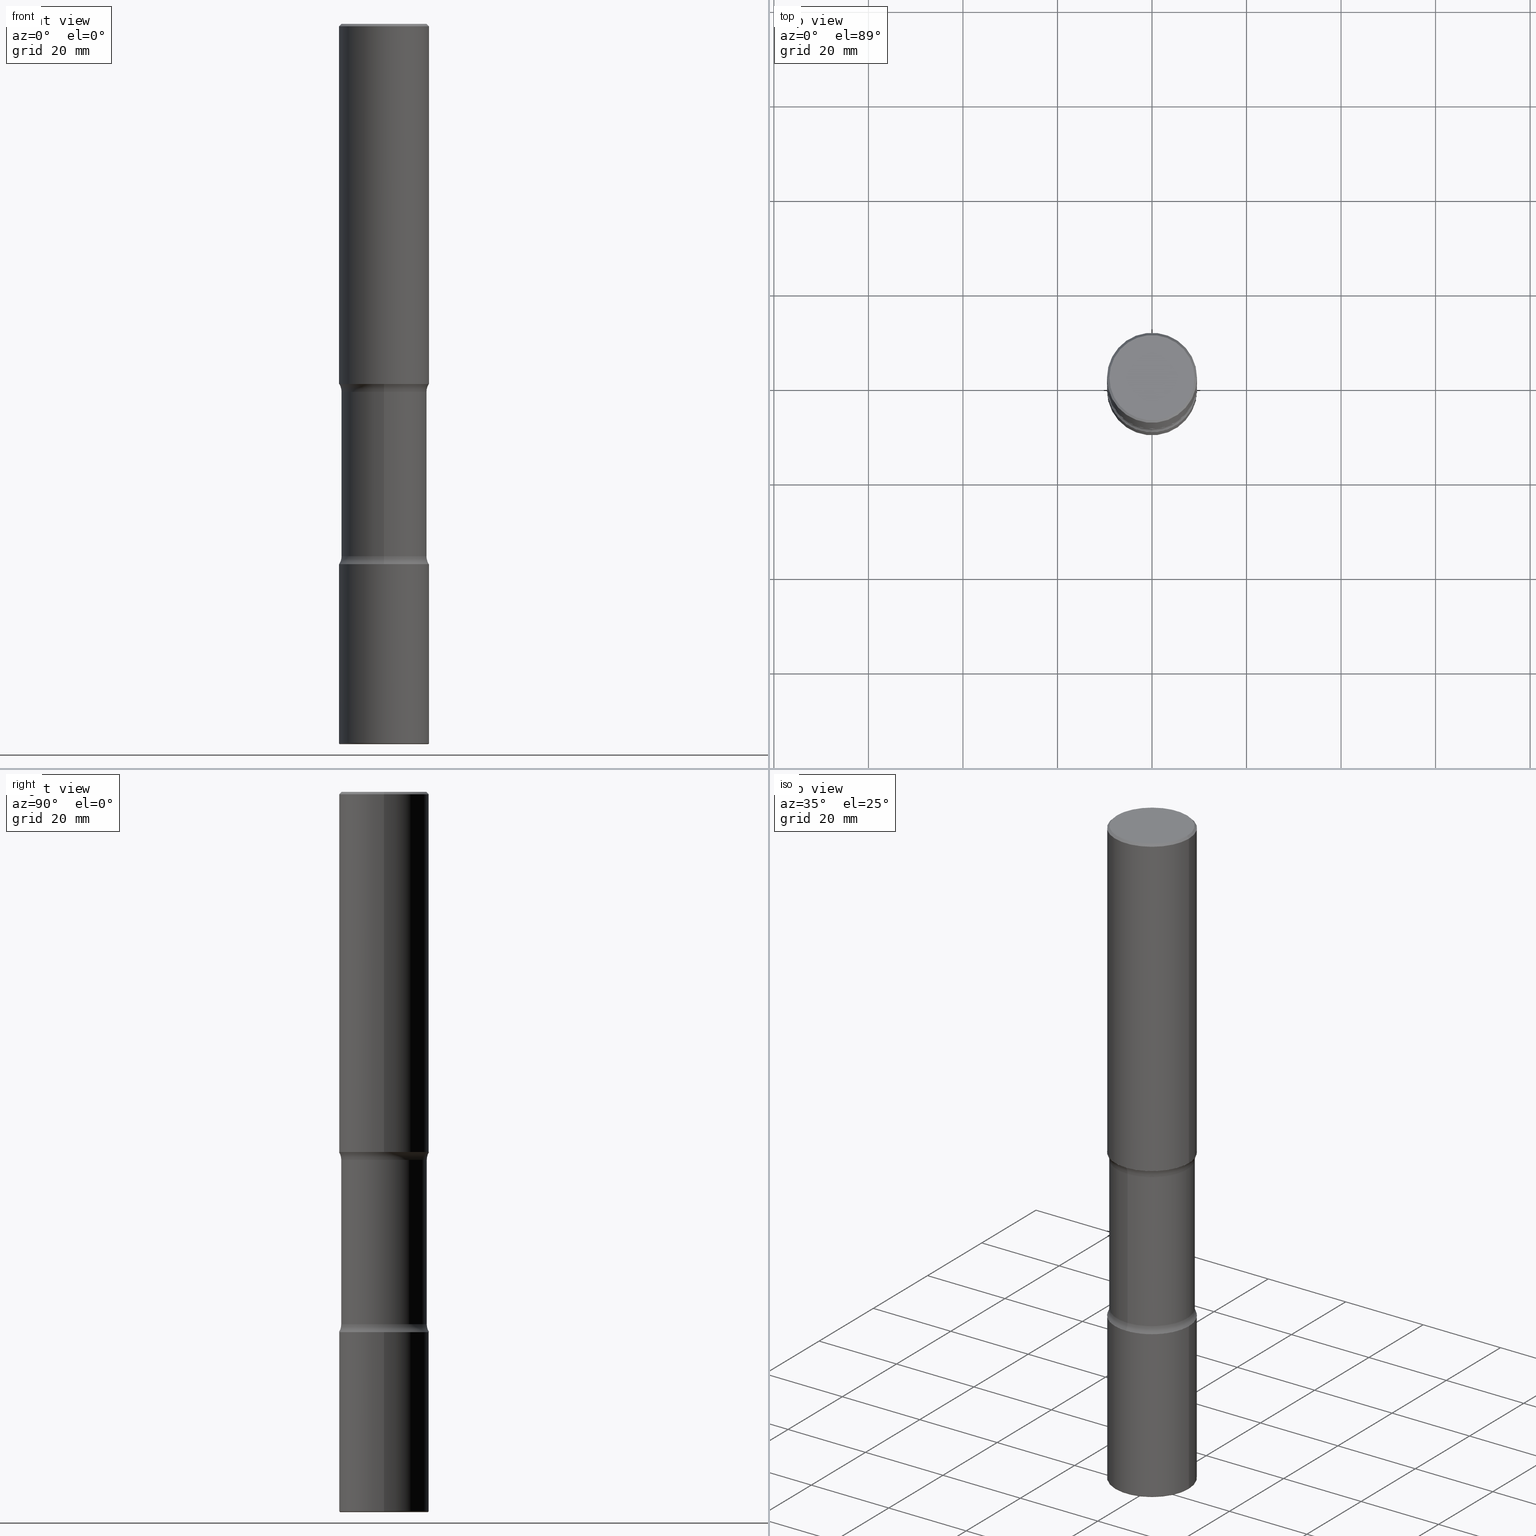
[diagram: canonical four-view strip — front | top / right | iso, engineering-drawing reading convention]
A machine part, canonical four-view strip (front | top / right | iso — engineering-drawing reading convention). The complete STEP part file that produces these views, byte-faithful:
ISO-10303-21;
HEADER;
FILE_DESCRIPTION (( 'STEP AP203' ),
    '1' );
FILE_NAME ('37929.STEP',
    '2024-03-02T01:29:25',
    ( '' ),
    ( '' ),
    'SwSTEP 2.0',
    'SolidWorks 2023',
    '' );
FILE_SCHEMA (( 'CONFIG_CONTROL_DESIGN' ));
ENDSEC;

DATA;
#1 = ADVANCED_FACE ( 'NONE', ( #199 ), #489, .T. ) ;
#2 = CIRCLE ( 'NONE', #344, 0.3750000000000001110 ) ;
#3 = ORIENTED_EDGE ( 'NONE', *, *, #211, .T. ) ;
#4 = PERSON_AND_ORGANIZATION ( #49, #335 ) ;
#5 = CARTESIAN_POINT ( 'NONE',  ( 1.467281283711081958E-28, -2.094888803305887271E-14, -6.000000000000000888 ) ) ;
#6 = EDGE_LOOP ( 'NONE', ( #395, #358, #317, #412 ) ) ;
#7 = EDGE_CURVE ( 'NONE', #544, #146, #245, .T. ) ;
#8 = ORIENTED_EDGE ( 'NONE', *, *, #478, .T. ) ;
#9 = VECTOR ( 'NONE', #209, 39.37007874015748143 ) ;
#10 = AXIS2_PLACEMENT_3D ( 'NONE', #263, #349, #133 ) ;
#11 = ORIENTED_EDGE ( 'NONE', *, *, #306, .T. ) ;
#12 = PERSON_AND_ORGANIZATION ( #49, #335 ) ;
#13 = ADVANCED_FACE ( 'NONE', ( #490 ), #29, .T. ) ;
#14 = DIRECTION ( 'NONE',  ( 1.000000000000000000, -6.982962677686265922E-15, 4.876176775795935793E-29 ) ) ;
#15 = VERTEX_POINT ( 'NONE', #460 ) ;
#16 = DIRECTION ( 'NONE',  ( 1.000000000000000000, -6.982962677686265922E-15, 0.000000000000000000 ) ) ;
#17 = ORIENTED_EDGE ( 'NONE', *, *, #379, .F. ) ;
#18 = AXIS2_PLACEMENT_3D ( 'NONE', #169, #189, #144 ) ;
#19 = EDGE_LOOP ( 'NONE', ( #285, #402, #549, #164 ) ) ;
#20 = VECTOR ( 'NONE', #213, 39.37007874015748143 ) ;
#21 = CARTESIAN_POINT ( 'NONE',  ( 4.890937612370289799E-31, -6.982962677686315028E-17, -0.02000000000000006981 ) ) ;
#22 = EDGE_LOOP ( 'NONE', ( #275, #374, #479, #73 ) ) ;
#23 = EDGE_CURVE ( 'NONE', #265, #100, #271, .T. ) ;
#24 = FACE_OUTER_BOUND ( 'NONE', #180, .T. ) ;
#25 = CARTESIAN_POINT ( 'NONE',  ( 2.487680453925840195E-15, 0.3562499999999844680, -4.434152164044670386 ) ) ;
#26 = ORIENTED_EDGE ( 'NONE', *, *, #328, .F. ) ;
#27 = DIRECTION ( 'NONE',  ( 1.000000000000000000, -6.982962677686265922E-15, 0.000000000000000000 ) ) ;
#28 = VERTEX_POINT ( 'NONE', #204 ) ;
#29 = CONICAL_SURFACE ( 'NONE', #443, 0.3750000000000001110, 0.7853981633974479459 ) ;
#30 = DIRECTION ( 'NONE',  ( 2.508247471065963170E-29, -3.401578717594097873E-15, -1.000000000000000000 ) ) ;
#31 = CC_DESIGN_APPROVAL ( #136, ( #394 ) ) ;
#32 = CARTESIAN_POINT ( 'NONE',  ( 4.890937612370289799E-31, -6.982962677686315028E-17, -0.02000000000000006981 ) ) ;
#33 = PERSON_AND_ORGANIZATION ( #49, #335 ) ;
#34 = CARTESIAN_POINT ( 'NONE',  ( -2.444052411705960129E-15, -0.3562500000000208278, -5.999999999999998224 ) ) ;
#35 = DIRECTION ( 'NONE',  ( -1.000000000000000000, 6.982962677686265922E-15, -4.876176775795935793E-29 ) ) ;
#36 = DIRECTION ( 'NONE',  ( -1.000000000000000000, 7.105427357601099677E-15, 0.000000000000000000 ) ) ;
#37 = LINE ( 'NONE', #82, #492 ) ;
#38 = DIRECTION ( 'NONE',  ( -2.445468806185136597E-29, 3.491481338843145583E-15, 1.000000000000000000 ) ) ;
#39 = LENGTH_MEASURE_WITH_UNIT ( LENGTH_MEASURE( 0.02539999999999999897 ), #78 );
#40 = ADVANCED_FACE ( 'NONE', ( #119 ), #231, .T. ) ;
#41 = PLANE ( 'NONE',  #436 ) ;
#42 = CLOSED_SHELL ( 'NONE', ( #120, #1, #172, #277, #225, #248 ) ) ;
#43 = VECTOR ( 'NONE', #342, 39.37007874015748143 ) ;
#44 = CALENDAR_DATE ( 2024, 1, 3 ) ;
#45 = ADVANCED_FACE ( 'NONE', ( #423 ), #253, .F. ) ;
#46 = ORIENTED_EDGE ( 'NONE', *, *, #504, .F. ) ;
#47 = ORIENTED_EDGE ( 'NONE', *, *, #293, .F. ) ;
#48 = APPROVAL_ROLE ( '' ) ;
#49 = PERSON ( 'UNSPECIFIED', 'UNSPECIFIED', 'UNSPECIFIED', ('UNSPECIFIED'), ('UNSPECIFIED'), ('UNSPECIFIED') ) ;
#50 = AXIS2_PLACEMENT_3D ( 'NONE', #71, #247, #380 ) ;
#51 = AXIS2_PLACEMENT_3D ( 'NONE', #76, #330, #465 ) ;
#52 = EDGE_CURVE ( 'NONE', #487, #97, #491, .T. ) ;
#53 = ORIENTED_EDGE ( 'NONE', *, *, #413, .F. ) ;
#54 = EDGE_LOOP ( 'NONE', ( #541, #8 ) ) ;
#55 = PERSON_AND_ORGANIZATION ( #49, #335 ) ;
#56 = EDGE_LOOP ( 'NONE', ( #445, #3, #503, #362 ) ) ;
#57 = EDGE_CURVE ( 'NONE', #481, #130, #280, .T. ) ;
#58 = AXIS2_PLACEMENT_3D ( 'NONE', #289, #554, #210 ) ;
#59 = AXIS2_PLACEMENT_3D ( 'NONE', #240, #431, #131 ) ;
#60 = ORIENTED_EDGE ( 'NONE', *, *, #264, .F. ) ;
#61 = EDGE_CURVE ( 'NONE', #292, #368, #2, .T. ) ;
#62 = ORIENTED_EDGE ( 'NONE', *, *, #23, .T. ) ;
#63 = DIRECTION ( 'NONE',  ( 6.982962677686265922E-15, 1.000000000000000000, -3.401578717594097873E-15 ) ) ;
#64 = ORIENTED_EDGE ( 'NONE', *, *, #469, .F. ) ;
#65 = CARTESIAN_POINT ( 'NONE',  ( -2.508369580435107128E-15, -0.3562500000000154987, -4.434152164044668609 ) ) ;
#66 = CARTESIAN_POINT ( 'NONE',  ( 2.487680453925806274E-15, 0.3562499999999891309, -3.065847835955330503 ) ) ;
#67 = AXIS2_PLACEMENT_3D ( 'NONE', #242, #333, #27 ) ;
#68 = ORIENTED_EDGE ( 'NONE', *, *, #534, .F. ) ;
#69 = EDGE_CURVE ( 'NONE', #528, #28, #163, .T. ) ;
#70 = DIRECTION ( 'NONE',  ( 1.000000000000000000, -6.982962677686124716E-15, 0.000000000000000000 ) ) ;
#71 = CARTESIAN_POINT ( 'NONE',  ( 1.467281283711081958E-28, -2.094888803305887271E-14, -6.000000000000000888 ) ) ;
#72 = CARTESIAN_POINT ( 'NONE',  ( -0.3550000000000000377, 2.513866563967055858E-15, 4.268512490082953109E-18 ) ) ;
#73 = ORIENTED_EDGE ( 'NONE', *, *, #440, .F. ) ;
#74 = EDGE_CURVE ( 'NONE', #100, #92, #288, .T. ) ;
#75 = CARTESIAN_POINT ( 'NONE',  ( 1.464835814904896579E-28, -2.091397321967043948E-14, -5.989999999999999325 ) ) ;
#76 = CARTESIAN_POINT ( 'NONE',  ( 1.100460962783311244E-28, -1.571166602479415374E-14, -4.499999999999999112 ) ) ;
#77 = AXIS2_PLACEMENT_3D ( 'NONE', #390, #30, #301 ) ;
#78 =( LENGTH_UNIT ( ) NAMED_UNIT ( * ) SI_UNIT ( $, .METRE. ) );
#79 = DIRECTION ( 'NONE',  ( 2.508247471065963170E-29, -3.401578717594097873E-15, -1.000000000000000000 ) ) ;
#80 = DIRECTION ( 'NONE',  ( 6.982962677686265133E-15, 1.000000000000000000, -3.067338098149347905E-15 ) ) ;
#81 = DIRECTION ( 'NONE',  ( 1.000000000000000000, -6.982962677686265922E-15, 0.000000000000000000 ) ) ;
#82 = CARTESIAN_POINT ( 'NONE',  ( 0.3750000000000001110, -2.642516375941188423E-15, -0.02000000000000006981 ) ) ;
#83 = DIRECTION ( 'NONE',  ( 6.982962677686265922E-15, 1.000000000000000000, -3.401578717594097873E-15 ) ) ;
#84 = CALENDAR_DATE ( 2024, 1, 3 ) ;
#85 = CARTESIAN_POINT ( 'NONE',  ( -0.3750000000000001110, 2.548781377355487113E-15, -0.02000000000000006981 ) ) ;
#86 = CC_DESIGN_PERSON_AND_ORGANIZATION_ASSIGNMENT ( #212, #464, ( #270 ) ) ;
#87 =( NAMED_UNIT ( * ) PLANE_ANGLE_UNIT ( ) SI_UNIT ( $, .RADIAN. ) );
#88 = CYLINDRICAL_SURFACE ( 'NONE', #10, 0.3750000000000002220 ) ;
#89 = AXIS2_PLACEMENT_3D ( 'NONE', #149, #536, #14 ) ;
#90 = APPROVAL_PERSON_ORGANIZATION ( #132, #205, #125 ) ;
#91 = DIRECTION ( 'NONE',  ( 2.508247471065963170E-29, -3.401578717594097873E-15, -1.000000000000000000 ) ) ;
#92 = VERTEX_POINT ( 'NONE', #543 ) ;
#93 = COORDINATED_UNIVERSAL_TIME_OFFSET ( 5, 0, .BEHIND. ) ;
#94 = CC_DESIGN_PERSON_AND_ORGANIZATION_ASSIGNMENT ( #276, #185, ( #135 ) ) ;
#95 = EDGE_LOOP ( 'NONE', ( #524, #219, #448, #105 ) ) ;
#96 = PRODUCT_DEFINITION_SHAPE ( 'NONE', 'NONE',  #337 ) ;
#97 = VERTEX_POINT ( 'NONE', #238 ) ;
#98 = DIRECTION ( 'NONE',  ( -2.445468806185136597E-29, 3.491481338843145583E-15, 1.000000000000000000 ) ) ;
#99 = ORIENTED_EDGE ( 'NONE', *, *, #109, .T. ) ;
#100 = VERTEX_POINT ( 'NONE', #161 ) ;
#101 = CARTESIAN_POINT ( 'NONE',  ( 2.618611004132426142E-15, 0.3749999999999898415, -3.000000000000000444 ) ) ;
#102 = CARTESIAN_POINT ( 'NONE',  ( 1.084358079904955852E-28, -1.548175953435291656E-14, -4.434152164044670386 ) ) ;
#103 = AXIS2_PLACEMENT_3D ( 'NONE', #392, #532, #323 ) ;
#104 = AXIS2_PLACEMENT_3D ( 'NONE', #548, #162, #36 ) ;
#105 = ORIENTED_EDGE ( 'NONE', *, *, #547, .T. ) ;
#106 = ADVANCED_FACE ( 'NONE', ( #407 ), #315, .F. ) ;
#107 = CARTESIAN_POINT ( 'NONE',  ( 0.3650000000000003242, -2.346275459702592935E-14, -5.989999999999999325 ) ) ;
#108 = EDGE_LOOP ( 'NONE', ( #239, #193, #483, #17 ) ) ;
#109 = EDGE_CURVE ( 'NONE', #287, #15, #424, .T. ) ;
#110 = FACE_OUTER_BOUND ( 'NONE', #314, .T. ) ;
#111 = DIRECTION ( 'NONE',  ( -2.445468806185136597E-29, 3.491481338843145583E-15, 1.000000000000000000 ) ) ;
#112 = DIRECTION ( 'NONE',  ( 1.000000000000000000, -6.982962677686266711E-15, 4.876176775795935793E-29 ) ) ;
#113 = DIRECTION ( 'NONE',  ( -6.982962677686268288E-15, -1.000000000000000000, 0.000000000000000000 ) ) ;
#114 = AXIS2_PLACEMENT_3D ( 'NONE', #201, #429, #156 ) ;
#115 = ORIENTED_EDGE ( 'NONE', *, *, #232, .T. ) ;
#116 = CIRCLE ( 'NONE', #188, 0.3750000000000003886 ) ;
#117 = DIRECTION ( 'NONE',  ( -6.982962677686265133E-15, -1.000000000000000000, 0.000000000000000000 ) ) ;
#118 = CARTESIAN_POINT ( 'NONE',  ( -1.043851414335219820E-46, 1.490343170380447200E-32, 4.268512490100411279E-18 ) ) ;
#119 = FACE_OUTER_BOUND ( 'NONE', #108, .T. ) ;
#120 = ADVANCED_FACE ( 'NONE', ( #110 ), #295, .T. ) ;
#121 = DIRECTION ( 'NONE',  ( 2.438088387897960049E-29, -3.491481338843145188E-15, -1.000000000000000000 ) ) ;
#122 = CLOSED_SHELL ( 'NONE', ( #298, #40, #13, #274, #401, #406 ) ) ;
#123 = EDGE_LOOP ( 'NONE', ( #64, #62, #261, #226 ) ) ;
#124 = CIRCLE ( 'NONE', #405, 0.3750000000000003886 ) ;
#125 = APPROVAL_ROLE ( '' ) ;
#126 = CARTESIAN_POINT ( 'NONE',  ( -2.508369580435144205E-15, -0.3562500000000108358, -3.065847835955328282 ) ) ;
#127 = DIRECTION ( 'NONE',  ( -2.445468806185136597E-29, 3.491481338843145583E-15, 1.000000000000000000 ) ) ;
#128 = COORDINATED_UNIVERSAL_TIME_OFFSET ( 5, 0, .BEHIND. ) ;
#129 = CC_DESIGN_DATE_AND_TIME_ASSIGNMENT ( #381, #167, ( #337 ) ) ;
#130 = VERTEX_POINT ( 'NONE', #66 ) ;
#131 = DIRECTION ( 'NONE',  ( 6.982962677686265922E-15, 1.000000000000000000, -2.913971193241877611E-15 ) ) ;
#132 = PERSON_AND_ORGANIZATION ( #49, #335 ) ;
#133 = DIRECTION ( 'NONE',  ( 1.000000000000000000, -6.982962677686266711E-15, 4.876176775795935793E-29 ) ) ;
#134 = AXIS2_PLACEMENT_3D ( 'NONE', #297, #438, #442 ) ;
#135 = PRODUCT_DEFINITION_FORMATION_WITH_SPECIFIED_SOURCE ( 'ANY', '', #270, .NOT_KNOWN. ) ;
#136 = APPROVAL ( #222, 'UNSPECIFIED' ) ;
#137 = CARTESIAN_POINT ( 'NONE',  ( -0.3750000000000001110, 2.548781377355487113E-15, -0.02000000000000006981 ) ) ;
#138 = CYLINDRICAL_SURFACE ( 'NONE', #300, 0.3562500000000000111 ) ;
#139 = ORIENTED_EDGE ( 'NONE', *, *, #256, .T. ) ;
#140 = ORIENTED_EDGE ( 'NONE', *, *, #7, .T. ) ;
#141 = AXIS2_PLACEMENT_3D ( 'NONE', #160, #121, #35 ) ;
#142 =( GEOMETRIC_REPRESENTATION_CONTEXT ( 3 ) GLOBAL_UNCERTAINTY_ASSIGNED_CONTEXT ( ( #530 ) ) GLOBAL_UNIT_ASSIGNED_CONTEXT ( ( #559, #87, #173 ) ) REPRESENTATION_CONTEXT ( 'NONE', 'WORKASPACE' ) );
#143 = VERTEX_POINT ( 'NONE', #420 ) ;
#144 = DIRECTION ( 'NONE',  ( 6.982962677686266711E-15, 1.000000000000000000, -2.913971193241876822E-15 ) ) ;
#145 = EDGE_CURVE ( 'NONE', #92, #143, #192, .T. ) ;
#146 = VERTEX_POINT ( 'NONE', #488 ) ;
#147 = PLANE ( 'NONE',  #414 ) ;
#148 = CIRCLE ( 'NONE', #467, 0.3750000000000002776 ) ;
#149 = CARTESIAN_POINT ( 'NONE',  ( 0.000000000000000000, 0.000000000000000000, 0.000000000000000000 ) ) ;
#150 = CIRCLE ( 'NONE', #378, 0.3750000000000004996 ) ;
#151 = VERTEX_POINT ( 'NONE', #25 ) ;
#152 = DIRECTION ( 'NONE',  ( 6.982962677686265133E-15, 1.000000000000000000, -3.067338098149347905E-15 ) ) ;
#153 = DIRECTION ( 'NONE',  ( 2.438088387897960049E-29, -3.491481338843145188E-15, -1.000000000000000000 ) ) ;
#154 = CARTESIAN_POINT ( 'NONE',  ( -0.3750000000000003886, 2.664535259100378458E-15, -1.844600658845591560E-29 ) ) ;
#155 = CYLINDRICAL_SURFACE ( 'NONE', #223, 0.3750000000000002220 ) ;
#156 = DIRECTION ( 'NONE',  ( 1.000000000000000000, -6.982962677686265922E-15, 4.876176775795935793E-29 ) ) ;
#157 = DIRECTION ( 'NONE',  ( 2.508247471065963170E-29, -3.401578717594097873E-15, -1.000000000000000000 ) ) ;
#158 = DIRECTION ( 'NONE',  ( 2.445468806185136597E-29, -3.491481338843145583E-15, -1.000000000000000000 ) ) ;
#159 = DIRECTION ( 'NONE',  ( 6.860497997771531562E-15, 1.000000000000000000, 0.000000000000000000 ) ) ;
#160 = CARTESIAN_POINT ( 'NONE',  ( 1.100460962783311244E-28, -1.571166602479415374E-14, -4.499999999999999112 ) ) ;
#161 = CARTESIAN_POINT ( 'NONE',  ( 0.3650000000000003242, -2.349766941041436574E-14, -6.000000000000000888 ) ) ;
#162 = DIRECTION ( 'NONE',  ( 7.105427357601001859E-15, 1.000000000000000000, -3.491481338843145583E-15 ) ) ;
#163 = CIRCLE ( 'NONE', #221, 0.3750000000000003886 ) ;
#164 = ORIENTED_EDGE ( 'NONE', *, *, #74, .F. ) ;
#165 = DIRECTION ( 'NONE',  ( 6.982962677686265922E-15, 1.000000000000000000, -3.401578717594097873E-15 ) ) ;
#166 = ADVANCED_FACE ( 'NONE', ( #498 ), #147, .F. ) ;
#167 = DATE_TIME_ROLE ( 'creation_date' ) ;
#168 = FACE_OUTER_BOUND ( 'NONE', #54, .T. ) ;
#169 = CARTESIAN_POINT ( 'NONE',  ( 7.242238421234168109E-29, -1.060929794840300496E-14, -2.999999999999999112 ) ) ;
#170 = AXIS2_PLACEMENT_3D ( 'NONE', #456, #243, #113 ) ;
#171 = CIRCLE ( 'NONE', #104, 0.01000000000000057614 ) ;
#172 = ADVANCED_FACE ( 'NONE', ( #461 ), #194, .T. ) ;
#173 =( NAMED_UNIT ( * ) SI_UNIT ( $, .STERADIAN. ) SOLID_ANGLE_UNIT ( ) );
#174 = APPROVAL_DATE_TIME ( #254, #205 ) ;
#175 = DESIGN_CONTEXT ( 'detailed design', #480, 'design' ) ;
#176 = EDGE_CURVE ( 'NONE', #528, #292, #325, .T. ) ;
#177 = VECTOR ( 'NONE', #409, 39.37007874015748143 ) ;
#178 = CIRCLE ( 'NONE', #444, 0.3562500000000000111 ) ;
#179 = DIRECTION ( 'NONE',  ( 6.982962677686266711E-15, 1.000000000000000000, -2.913971193241876822E-15 ) ) ;
#180 = EDGE_LOOP ( 'NONE', ( #485, #115, #454, #60 ) ) ;
#181 = MANIFOLD_SOLID_BREP ( 'Body-Move/Copy2[2]', #122 ) ;
#182 = CARTESIAN_POINT ( 'NONE',  ( 2.478951750578624998E-15, 0.3550000000000000377, -1.237341619044266624E-15 ) ) ;
#183 = VERTEX_POINT ( 'NONE', #286 ) ;
#184 = ORIENTED_EDGE ( 'NONE', *, *, #365, .T. ) ;
#185 = PERSON_AND_ORGANIZATION_ROLE ( 'design_supplier' ) ;
#186 = CIRCLE ( 'NONE', #500, 0.3562500000000000111 ) ;
#187 = EDGE_CURVE ( 'NONE', #278, #151, #387, .T. ) ;
#188 = AXIS2_PLACEMENT_3D ( 'NONE', #340, #555, #81 ) ;
#189 = DIRECTION ( 'NONE',  ( 2.508247471065963170E-29, -3.401578717594097873E-15, -1.000000000000000000 ) ) ;
#190 = EDGE_LOOP ( 'NONE', ( #220, #184, #195, #224 ) ) ;
#191 = CALENDAR_DATE ( 2024, 1, 3 ) ;
#192 = LINE ( 'NONE', #282, #177 ) ;
#193 = ORIENTED_EDGE ( 'NONE', *, *, #484, .T. ) ;
#194 = PLANE ( 'NONE',  #322 ) ;
#195 = ORIENTED_EDGE ( 'NONE', *, *, #61, .F. ) ;
#196 = EDGE_CURVE ( 'NONE', #92, #544, #305, .T. ) ;
#197 = MANIFOLD_SOLID_BREP ( 'Body-Move/Copy2[4]', #260 ) ;
#198 = AXIS2_PLACEMENT_3D ( 'NONE', #296, #462, #249 ) ;
#199 = FACE_OUTER_BOUND ( 'NONE', #19, .T. ) ;
#200 = CARTESIAN_POINT ( 'NONE',  ( 2.618611004132461246E-15, 0.3749999999999845124, -4.500000000000000888 ) ) ;
#201 = CARTESIAN_POINT ( 'NONE',  ( 0.000000000000000000, 0.000000000000000000, 0.000000000000000000 ) ) ;
#202 = DIRECTION ( 'NONE',  ( 1.000000000000000000, -6.982962677686266711E-15, 4.876231632511987623E-29 ) ) ;
#203 = CARTESIAN_POINT ( 'NONE',  ( 7.336406418555407548E-29, -1.047444401652943320E-14, -2.999999999999999112 ) ) ;
#204 = CARTESIAN_POINT ( 'NONE',  ( -0.3750000000000003886, -2.607601562552767029E-15, -2.999999999999999112 ) ) ;
#205 = APPROVAL ( #437, 'UNSPECIFIED' ) ;
#206 = DIRECTION ( 'NONE',  ( 1.000000000000000000, -6.982962677686266711E-15, 4.883557194083113462E-29 ) ) ;
#207 = COORDINATED_UNIVERSAL_TIME_OFFSET ( 5, 0, .BEHIND. ) ;
#208 = FACE_OUTER_BOUND ( 'NONE', #6, .T. ) ;
#209 = DIRECTION ( 'NONE',  ( 2.508247471065963170E-29, -3.401578717594097873E-15, -1.000000000000000000 ) ) ;
#210 = DIRECTION ( 'NONE',  ( 6.860497997771532351E-15, 1.000000000000000000, 0.000000000000000000 ) ) ;
#211 = EDGE_CURVE ( 'NONE', #481, #97, #403, .T. ) ;
#212 = PERSON_AND_ORGANIZATION ( #49, #335 ) ;
#213 = DIRECTION ( 'NONE',  ( -2.445468806185136877E-29, 3.491481338843145188E-15, 1.000000000000000000 ) ) ;
#214 = AXIS2_PLACEMENT_3D ( 'NONE', #466, #369, #542 ) ;
#215 = CC_DESIGN_APPROVAL ( #228, ( #135 ) ) ;
#216 = APPLICATION_PROTOCOL_DEFINITION ( 'international standard', 'config_control_design', 1994, #480 ) ;
#217 = ADVANCED_FACE ( 'NONE', ( #343 ), #416, .T. ) ;
#218 = DIRECTION ( 'NONE',  ( -2.445468806185136597E-29, 3.491481338843145583E-15, 1.000000000000000000 ) ) ;
#219 = ORIENTED_EDGE ( 'NONE', *, *, #525, .F. ) ;
#220 = ORIENTED_EDGE ( 'NONE', *, *, #69, .T. ) ;
#221 = AXIS2_PLACEMENT_3D ( 'NONE', #290, #411, #284 ) ;
#222 = APPROVAL_STATUS ( 'not_yet_approved' ) ;
#223 = AXIS2_PLACEMENT_3D ( 'NONE', #383, #496, #112 ) ;
#224 = ORIENTED_EDGE ( 'NONE', *, *, #176, .F. ) ;
#225 = ADVANCED_FACE ( 'NONE', ( #24 ), #339, .T. ) ;
#226 = ORIENTED_EDGE ( 'NONE', *, *, #232, .F. ) ;
#227 = DATE_AND_TIME ( #486, #551 ) ;
#228 = APPROVAL ( #338, 'UNSPECIFIED' ) ;
#229 = ORIENTED_EDGE ( 'NONE', *, *, #57, .T. ) ;
#230 = SECURITY_CLASSIFICATION_LEVEL ( 'unclassified' ) ;
#231 = CONICAL_SURFACE ( 'NONE', #198, 0.3750000000000001110, 0.7853981633974479459 ) ;
#232 = EDGE_CURVE ( 'NONE', #544, #92, #148, .T. ) ;
#233 = LOCAL_TIME ( 20, 29, 25.00000000000000000, #302 ) ;
#234 = ORIENTED_EDGE ( 'NONE', *, *, #518, .F. ) ;
#235 = CC_DESIGN_PERSON_AND_ORGANIZATION_ASSIGNMENT ( #4, #352, ( #394 ) ) ;
#236 = DIRECTION ( 'NONE',  ( -2.445468806185136597E-29, 3.491481338843145583E-15, 1.000000000000000000 ) ) ;
#237 = VERTEX_POINT ( 'NONE', #65 ) ;
#238 = CARTESIAN_POINT ( 'NONE',  ( -2.572686749164255311E-15, -0.3750000000000111577, -2.999999999999998224 ) ) ;
#239 = ORIENTED_EDGE ( 'NONE', *, *, #256, .F. ) ;
#240 = CARTESIAN_POINT ( 'NONE',  ( 1.100460962783311244E-28, -1.571166602479415374E-14, -4.499999999999999112 ) ) ;
#241 = CIRCLE ( 'NONE', #537, 0.3550000000000000377 ) ;
#242 = CARTESIAN_POINT ( 'NONE',  ( 1.100460962783311244E-28, -1.571166602479415374E-14, -4.499999999999999112 ) ) ;
#243 = DIRECTION ( 'NONE',  ( -1.000000000000000000, 6.982962677686265922E-15, -4.883557194083112901E-29 ) ) ;
#244 = LOCAL_TIME ( 20, 29, 25.00000000000000000, #207 ) ;
#245 = LINE ( 'NONE', #154, #526 ) ;
#246 = DIRECTION ( 'NONE',  ( 2.508247471065963170E-29, -3.401578717594097873E-15, -1.000000000000000000 ) ) ;
#247 = DIRECTION ( 'NONE',  ( -2.445468806185136597E-29, 3.491481338843145583E-15, 1.000000000000000000 ) ) ;
#248 = ADVANCED_FACE ( 'NONE', ( #251 ), #425, .F. ) ;
#249 = DIRECTION ( 'NONE',  ( -1.000000000000000000, 6.982962677686265922E-15, 0.000000000000000000 ) ) ;
#250 = CARTESIAN_POINT ( 'NONE',  ( -0.3750000000000006661, -1.824943796057005747E-14, -5.989999999999999325 ) ) ;
#251 = FACE_OUTER_BOUND ( 'NONE', #455, .T. ) ;
#252 = DIRECTION ( 'NONE',  ( 2.508247471065963170E-29, -3.401578717594097873E-15, -1.000000000000000000 ) ) ;
#253 = TOROIDAL_SURFACE ( 'NONE', #550, 0.4812500000000000666, 0.1249999999999998612 ) ;
#254 = DATE_AND_TIME ( #44, #281 ) ;
#255 = CARTESIAN_POINT ( 'NONE',  ( 0.3750000000000001110, -2.642516375941188423E-15, -0.02000000000000006981 ) ) ;
#256 = EDGE_CURVE ( 'NONE', #15, #287, #241, .T. ) ;
#257 = CARTESIAN_POINT ( 'NONE',  ( 2.487680453925879638E-15, 0.3562499999999791389, -6.000000000000000888 ) ) ;
#258 = MECHANICAL_CONTEXT ( 'NONE', #318, 'mechanical' ) ;
#259 = CARTESIAN_POINT ( 'NONE',  ( 7.336406418555407548E-29, -1.047444401652943320E-14, -2.999999999999999112 ) ) ;
#260 = CLOSED_SHELL ( 'NONE', ( #217, #106, #355, #268, #166, #471, #45, #433 ) ) ;
#261 = ORIENTED_EDGE ( 'NONE', *, *, #74, .T. ) ;
#262 = CIRCLE ( 'NONE', #59, 0.3750000000000003886 ) ;
#263 = CARTESIAN_POINT ( 'NONE',  ( 0.000000000000000000, 0.000000000000000000, 0.000000000000000000 ) ) ;
#264 = EDGE_CURVE ( 'NONE', #146, #143, #375, .T. ) ;
#265 = VERTEX_POINT ( 'NONE', #502 ) ;
#266 = DATE_AND_TIME ( #191, #515 ) ;
#267 = DIRECTION ( 'NONE',  ( 1.000000000000000000, -6.982962677686265922E-15, 0.000000000000000000 ) ) ;
#268 = ADVANCED_FACE ( 'NONE', ( #208 ), #299, .F. ) ;
#269 = EDGE_LOOP ( 'NONE', ( #493, #68 ) ) ;
#270 = PRODUCT ( '37929', '37929', '', ( #258 ) ) ;
#271 = CIRCLE ( 'NONE', #50, 0.3650000000000003242 ) ;
#272 = APPROVAL_DATE_TIME ( #529, #228 ) ;
#273 = TOROIDAL_SURFACE ( 'NONE', #291, 0.4812499999999999556, 0.1249999999999999584 ) ;
#274 = ADVANCED_FACE ( 'NONE', ( #506 ), #397, .F. ) ;
#275 = ORIENTED_EDGE ( 'NONE', *, *, #365, .F. ) ;
#276 = PERSON_AND_ORGANIZATION ( #49, #335 ) ;
#277 = ADVANCED_FACE ( 'NONE', ( #505 ), #458, .T. ) ;
#278 = VERTEX_POINT ( 'NONE', #200 ) ;
#279 = EDGE_CURVE ( 'NONE', #130, #481, #186, .T. ) ;
#280 = CIRCLE ( 'NONE', #103, 0.3562500000000000111 ) ;
#281 = LOCAL_TIME ( 20, 29, 25.00000000000000000, #128 ) ;
#282 = CARTESIAN_POINT ( 'NONE',  ( 0.3750000000000003886, -2.618611004132352383E-15, 1.828566290923477884E-29 ) ) ;
#283 = ORIENTED_EDGE ( 'NONE', *, *, #518, .T. ) ;
#284 = DIRECTION ( 'NONE',  ( 1.000000000000000000, -6.982962677686265922E-15, 0.000000000000000000 ) ) ;
#285 = ORIENTED_EDGE ( 'NONE', *, *, #504, .T. ) ;
#286 = CARTESIAN_POINT ( 'NONE',  ( -2.572686749164215473E-15, -0.3750000000000159317, -4.499999999999998224 ) ) ;
#287 = VERTEX_POINT ( 'NONE', #72 ) ;
#288 = CIRCLE ( 'NONE', #359, 0.01000000000000057614 ) ;
#289 = CARTESIAN_POINT ( 'NONE',  ( -3.301614661427474544E-15, -0.4812500000000108358, -3.065847835955327838 ) ) ;
#290 = CARTESIAN_POINT ( 'NONE',  ( 7.336406418555407548E-29, -1.047444401652943320E-14, -2.999999999999999112 ) ) ;
#291 = AXIS2_PLACEMENT_3D ( 'NONE', #304, #553, #83 ) ;
#292 = VERTEX_POINT ( 'NONE', #255 ) ;
#293 = EDGE_CURVE ( 'NONE', #481, #237, #327, .T. ) ;
#294 = DIRECTION ( 'NONE',  ( 1.000000000000000000, -6.982962677686266711E-15, 4.876231632511987623E-29 ) ) ;
#295 = CYLINDRICAL_SURFACE ( 'NONE', #89, 0.3750000000000003886 ) ;
#296 = CARTESIAN_POINT ( 'NONE',  ( 4.890937612370289799E-31, -6.982962677686315028E-17, -0.02000000000000006981 ) ) ;
#297 = CARTESIAN_POINT ( 'NONE',  ( 7.402053284434616373E-29, -1.084094290665388719E-14, -3.065847835955329614 ) ) ;
#298 = ADVANCED_FACE ( 'NONE', ( #459 ), #155, .T. ) ;
#299 = TOROIDAL_SURFACE ( 'NONE', #134, 0.4812499999999999556, 0.1249999999999999584 ) ;
#300 = AXIS2_PLACEMENT_3D ( 'NONE', #310, #252, #463 ) ;
#301 = DIRECTION ( 'NONE',  ( 6.982962677686265133E-15, 1.000000000000000000, -3.067338098149347905E-15 ) ) ;
#302 = COORDINATED_UNIVERSAL_TIME_OFFSET ( 5, 0, .BEHIND. ) ;
#303 = CARTESIAN_POINT ( 'NONE',  ( 0.000000000000000000, 0.000000000000000000, 0.000000000000000000 ) ) ;
#304 = CARTESIAN_POINT ( 'NONE',  ( 7.402053284434616373E-29, -1.084094290665388719E-14, -3.065847835955329614 ) ) ;
#305 = CIRCLE ( 'NONE', #332, 0.3750000000000002776 ) ;
#306 = EDGE_CURVE ( 'NONE', #183, #237, #520, .T. ) ;
#307 = APPROVAL_PERSON_ORGANIZATION ( #55, #136, #48 ) ;
#308 = PERSON_AND_ORGANIZATION_ROLE ( 'creator' ) ;
#309 = CARTESIAN_POINT ( 'NONE',  ( 7.242238421234168109E-29, -1.060929794840300496E-14, -2.999999999999999112 ) ) ;
#310 = CARTESIAN_POINT ( 'NONE',  ( 1.476698083443205790E-28, -2.081403410118529621E-14, -5.999999999999999112 ) ) ;
#311 = ORIENTED_EDGE ( 'NONE', *, *, #23, .F. ) ;
#312 = EDGE_CURVE ( 'NONE', #130, #487, #468, .T. ) ;
#313 = DIRECTION ( 'NONE',  ( 1.000000000000000000, -6.982962677686270655E-15, 0.000000000000000000 ) ) ;
#314 = EDGE_LOOP ( 'NONE', ( #364, #140, #26, #319 ) ) ;
#315 = TOROIDAL_SURFACE ( 'NONE', #475, 0.4812500000000000666, 0.1249999999999998612 ) ;
#316 = CC_DESIGN_SECURITY_CLASSIFICATION ( #394, ( #135 ) ) ;
#317 = ORIENTED_EDGE ( 'NONE', *, *, #312, .T. ) ;
#318 = APPLICATION_CONTEXT ( 'configuration controlled 3d designs of mechanical parts and assemblies' ) ;
#319 = ORIENTED_EDGE ( 'NONE', *, *, #145, .F. ) ;
#320 = DIMENSIONAL_EXPONENTS ( 1.000000000000000000, 0.000000000000000000, 0.000000000000000000, 0.000000000000000000, 0.000000000000000000, 0.000000000000000000, 0.000000000000000000 ) ;
#321 = DIRECTION ( 'NONE',  ( -2.445468806185136597E-29, 3.491481338843145583E-15, 1.000000000000000000 ) ) ;
#322 = AXIS2_PLACEMENT_3D ( 'NONE', #417, #153, #453 ) ;
#323 = DIRECTION ( 'NONE',  ( 6.982962677686265133E-15, 1.000000000000000000, -3.067338098149347905E-15 ) ) ;
#324 = EDGE_LOOP ( 'NONE', ( #353, #533, #410, #329 ) ) ;
#325 = LINE ( 'NONE', #363, #366 ) ;
#326 = CARTESIAN_POINT ( 'NONE',  ( 1.464835814904896579E-28, -2.091397321967043948E-14, -5.989999999999999325 ) ) ;
#327 = LINE ( 'NONE', #34, #9 ) ;
#328 = EDGE_CURVE ( 'NONE', #143, #146, #124, .T. ) ;
#329 = ORIENTED_EDGE ( 'NONE', *, *, #440, .T. ) ;
#330 = DIRECTION ( 'NONE',  ( -2.508247471065962609E-29, 3.401578717594097873E-15, 1.000000000000000000 ) ) ;
#331 = CARTESIAN_POINT ( 'NONE',  ( 3.360550788636589613E-15, 0.4812499999999890754, -3.065847835955331391 ) ) ;
#332 = AXIS2_PLACEMENT_3D ( 'NONE', #560, #218, #377 ) ;
#333 = DIRECTION ( 'NONE',  ( -2.445468806185136597E-29, 3.491481338843145583E-15, 1.000000000000000000 ) ) ;
#334 = DIRECTION ( 'NONE',  ( -6.982962677686266711E-15, -1.000000000000000000, 3.491481338843145583E-15 ) ) ;
#335 = ORGANIZATION ( 'UNSPECIFIED', 'UNSPECIFIED', '' ) ;
#336 = ORIENTED_EDGE ( 'NONE', *, *, #478, .F. ) ;
#337 = PRODUCT_DEFINITION ( 'UNKNOWN', '', #135, #175 ) ;
#338 = APPROVAL_STATUS ( 'not_yet_approved' ) ;
#339 = CYLINDRICAL_SURFACE ( 'NONE', #114, 0.3750000000000003886 ) ;
#340 = CARTESIAN_POINT ( 'NONE',  ( 7.336406418555407548E-29, -1.047444401652943320E-14, -2.999999999999999112 ) ) ;
#341 = CARTESIAN_POINT ( 'NONE',  ( 1.100460962783311244E-28, -1.571166602479415374E-14, -4.499999999999999112 ) ) ;
#342 = DIRECTION ( 'NONE',  ( -0.7071067811865472397, 2.468850131082253905E-15, -0.7071067811865477948 ) ) ;
#343 = FACE_OUTER_BOUND ( 'NONE', #450, .T. ) ;
#344 = AXIS2_PLACEMENT_3D ( 'NONE', #21, #236, #16 ) ;
#345 = LINE ( 'NONE', #257, #360 ) ;
#346 = AXIS2_PLACEMENT_3D ( 'NONE', #371, #546, #159 ) ;
#347 = CC_DESIGN_PERSON_AND_ORGANIZATION_ASSIGNMENT ( #12, #354, ( #135 ) ) ;
#348 = PERSON_AND_ORGANIZATION ( #49, #335 ) ;
#349 = DIRECTION ( 'NONE',  ( -2.445468806185136597E-29, 3.491481338843145583E-15, 1.000000000000000000 ) ) ;
#350 = AXIS2_PLACEMENT_3D ( 'NONE', #326, #111, #206 ) ;
#351 = AXIS2_PLACEMENT_3D ( 'NONE', #32, #421, #373 ) ;
#352 = PERSON_AND_ORGANIZATION_ROLE ( 'classification_officer' ) ;
#353 = ORIENTED_EDGE ( 'NONE', *, *, #484, .F. ) ;
#354 = PERSON_AND_ORGANIZATION_ROLE ( 'creator' ) ;
#355 = ADVANCED_FACE ( 'NONE', ( #391 ), #273, .F. ) ;
#356 = DIRECTION ( 'NONE',  ( 2.438088387897960049E-29, -3.491481338843145188E-15, -1.000000000000000000 ) ) ;
#357 = ORIENTED_EDGE ( 'NONE', *, *, #52, .F. ) ;
#358 = ORIENTED_EDGE ( 'NONE', *, *, #279, .F. ) ;
#359 = AXIS2_PLACEMENT_3D ( 'NONE', #107, #334, #70 ) ;
#360 = VECTOR ( 'NONE', #246, 39.37007874015748143 ) ;
#361 = EDGE_LOOP ( 'NONE', ( #357, #53 ) ) ;
#362 = ORIENTED_EDGE ( 'NONE', *, *, #312, .F. ) ;
#363 = CARTESIAN_POINT ( 'NONE',  ( 0.3750000000000002220, -2.618611004132351594E-15, 1.828566290923477043E-29 ) ) ;
#364 = ORIENTED_EDGE ( 'NONE', *, *, #196, .T. ) ;
#365 = EDGE_CURVE ( 'NONE', #28, #368, #434, .T. ) ;
#366 = VECTOR ( 'NONE', #494, 39.37007874015748143 ) ;
#367 = AXIS2_PLACEMENT_3D ( 'NONE', #341, #513, #432 ) ;
#368 = VERTEX_POINT ( 'NONE', #137 ) ;
#369 = DIRECTION ( 'NONE',  ( -2.445468806185136597E-29, 3.491481338843145583E-15, 1.000000000000000000 ) ) ;
#370 = CARTESIAN_POINT ( 'NONE',  ( 4.890937612370289799E-31, -6.982962677686315028E-17, -0.02000000000000006981 ) ) ;
#371 = CARTESIAN_POINT ( 'NONE',  ( -3.301614661427441806E-15, -0.4812500000000156097, -4.434152164044668609 ) ) ;
#372 = DIRECTION ( 'NONE',  ( 2.508247471065962609E-29, -3.401578717594097873E-15, -1.000000000000000000 ) ) ;
#373 = DIRECTION ( 'NONE',  ( 1.000000000000000000, -6.982962677686265922E-15, 0.000000000000000000 ) ) ;
#374 = ORIENTED_EDGE ( 'NONE', *, *, #534, .T. ) ;
#375 = CIRCLE ( 'NONE', #67, 0.3750000000000003886 ) ;
#376 = MANIFOLD_SOLID_BREP ( 'Body-Move/Copy2[1]', #42 ) ;
#377 = DIRECTION ( 'NONE',  ( 1.000000000000000000, -6.982962677686267499E-15, 0.000000000000000000 ) ) ;
#378 = AXIS2_PLACEMENT_3D ( 'NONE', #309, #91, #179 ) ;
#379 = EDGE_CURVE ( 'NONE', #287, #368, #474, .T. ) ;
#380 = DIRECTION ( 'NONE',  ( 1.000000000000000000, -6.982962677686270655E-15, 0.000000000000000000 ) ) ;
#381 = DATE_AND_TIME ( #428, #244 ) ;
#382 = DIRECTION ( 'NONE',  ( 1.000000000000000000, 0.000000000000000000, 0.000000000000000000 ) ) ;
#383 = CARTESIAN_POINT ( 'NONE',  ( 0.000000000000000000, 0.000000000000000000, 0.000000000000000000 ) ) ;
#384 = CARTESIAN_POINT ( 'NONE',  ( -1.043851414335219820E-46, 1.490343170380447200E-32, 4.268512490100411279E-18 ) ) ;
#385 = DIRECTION ( 'NONE',  ( 0.7071067811865472397, -7.319954787623254468E-15, -0.7071067811865477948 ) ) ;
#386 = DIRECTION ( 'NONE',  ( 1.000000000000000000, -6.982962677686265922E-15, 4.876176775795935793E-29 ) ) ;
#387 = CIRCLE ( 'NONE', #170, 0.1249999999999998335 ) ;
#388 = CIRCLE ( 'NONE', #367, 0.3750000000000003886 ) ;
#389 = CC_DESIGN_DATE_AND_TIME_ASSIGNMENT ( #227, #400, ( #394 ) ) ;
#390 = CARTESIAN_POINT ( 'NONE',  ( 1.083944695982298980E-28, -1.548767942740887449E-14, -4.434152164044669497 ) ) ;
#391 = FACE_OUTER_BOUND ( 'NONE', #56, .T. ) ;
#392 = CARTESIAN_POINT ( 'NONE',  ( 7.407401089244291879E-29, -1.083328454578828421E-14, -3.065847835955329614 ) ) ;
#393 = AXIS2_PLACEMENT_3D ( 'NONE', #118, #321, #202 ) ;
#394 = SECURITY_CLASSIFICATION ( '', '', #230 ) ;
#395 = ORIENTED_EDGE ( 'NONE', *, *, #211, .F. ) ;
#396 = ADVANCED_BREP_SHAPE_REPRESENTATION ( '37929', ( #376, #181, #197, #415 ), #142 ) ;
#397 = PLANE ( 'NONE',  #435 ) ;
#398 = ORIENTED_EDGE ( 'NONE', *, *, #264, .T. ) ;
#399 = EDGE_LOOP ( 'NONE', ( #336, #11, #283, #446 ) ) ;
#400 = DATE_TIME_ROLE ( 'classification_date' ) ;
#401 = ADVANCED_FACE ( 'NONE', ( #514 ), #41, .F. ) ;
#402 = ORIENTED_EDGE ( 'NONE', *, *, #469, .T. ) ;
#403 = CIRCLE ( 'NONE', #58, 0.1249999999999999584 ) ;
#404 = SHAPE_DEFINITION_REPRESENTATION ( #96, #396 ) ;
#405 = AXIS2_PLACEMENT_3D ( 'NONE', #519, #38, #267 ) ;
#406 = ADVANCED_FACE ( 'NONE', ( #556 ), #88, .T. ) ;
#407 = FACE_OUTER_BOUND ( 'NONE', #399, .T. ) ;
#408 = EDGE_LOOP ( 'NONE', ( #47, #229, #495, #234 ) ) ;
#409 = DIRECTION ( 'NONE',  ( -2.445468806185136877E-29, 3.491481338843145188E-15, 1.000000000000000000 ) ) ;
#410 = ORIENTED_EDGE ( 'NONE', *, *, #379, .T. ) ;
#411 = DIRECTION ( 'NONE',  ( -2.445468806185136597E-29, 3.491481338843145583E-15, 1.000000000000000000 ) ) ;
#412 = ORIENTED_EDGE ( 'NONE', *, *, #52, .T. ) ;
#413 = EDGE_CURVE ( 'NONE', #97, #487, #150, .T. ) ;
#414 = AXIS2_PLACEMENT_3D ( 'NONE', #203, #372, #63 ) ;
#415 = AXIS2_PLACEMENT_3D ( 'NONE', #303, #473, #382 ) ;
#416 = CYLINDRICAL_SURFACE ( 'NONE', #451, 0.3562500000000000111 ) ;
#417 = CARTESIAN_POINT ( 'NONE',  ( 2.129431414073243323E-29, -3.891172415578277523E-14, -5.999999999999999112 ) ) ;
#418 = DIRECTION ( 'NONE',  ( -2.445468806185136877E-29, 3.491481338843145188E-15, 1.000000000000000000 ) ) ;
#419 = DIRECTION ( 'NONE',  ( 2.508247471065963170E-29, -3.401578717594097873E-15, -1.000000000000000000 ) ) ;
#420 = CARTESIAN_POINT ( 'NONE',  ( 0.3750000000000003886, -1.833027702892650691E-14, -4.499999999999999112 ) ) ;
#421 = DIRECTION ( 'NONE',  ( -2.445468806185136597E-29, 3.491481338843145583E-15, 1.000000000000000000 ) ) ;
#422 = EDGE_LOOP ( 'NONE', ( #99, #139 ) ) ;
#423 = FACE_OUTER_BOUND ( 'NONE', #95, .T. ) ;
#424 = CIRCLE ( 'NONE', #393, 0.3550000000000000377 ) ;
#425 = PLANE ( 'NONE',  #141 ) ;
#426 = EDGE_CURVE ( 'NONE', #130, #151, #345, .T. ) ;
#427 = CIRCLE ( 'NONE', #527, 0.3650000000000003242 ) ;
#428 = CALENDAR_DATE ( 2024, 1, 3 ) ;
#429 = DIRECTION ( 'NONE',  ( -2.445468806185136597E-29, 3.491481338843145583E-15, 1.000000000000000000 ) ) ;
#430 = FACE_OUTER_BOUND ( 'NONE', #408, .T. ) ;
#431 = DIRECTION ( 'NONE',  ( 2.508247471065963170E-29, -3.401578717594097873E-15, -1.000000000000000000 ) ) ;
#432 = DIRECTION ( 'NONE',  ( 6.982962677686265922E-15, 1.000000000000000000, -2.913971193241877611E-15 ) ) ;
#433 = ADVANCED_FACE ( 'NONE', ( #430 ), #138, .T. ) ;
#434 = LINE ( 'NONE', #558, #20 ) ;
#435 = AXIS2_PLACEMENT_3D ( 'NONE', #182, #356, #523 ) ;
#436 = AXIS2_PLACEMENT_3D ( 'NONE', #259, #439, #386 ) ;
#437 = APPROVAL_STATUS ( 'not_yet_approved' ) ;
#438 = DIRECTION ( 'NONE',  ( 2.508247471065963170E-29, -3.401578717594097873E-15, -1.000000000000000000 ) ) ;
#439 = DIRECTION ( 'NONE',  ( -2.438088387897960049E-29, 3.491481338843145188E-15, 1.000000000000000000 ) ) ;
#440 = EDGE_CURVE ( 'NONE', #368, #292, #539, .T. ) ;
#441 = ORIENTED_EDGE ( 'NONE', *, *, #328, .T. ) ;
#442 = DIRECTION ( 'NONE',  ( 6.982962677686265922E-15, 1.000000000000000000, -3.401578717594097873E-15 ) ) ;
#443 = AXIS2_PLACEMENT_3D ( 'NONE', #370, #158, #499 ) ;
#444 = AXIS2_PLACEMENT_3D ( 'NONE', #447, #535, #545 ) ;
#445 = ORIENTED_EDGE ( 'NONE', *, *, #57, .F. ) ;
#446 = ORIENTED_EDGE ( 'NONE', *, *, #187, .F. ) ;
#447 = CARTESIAN_POINT ( 'NONE',  ( 1.083944695982298980E-28, -1.548767942740887449E-14, -4.434152164044669497 ) ) ;
#448 = ORIENTED_EDGE ( 'NONE', *, *, #187, .T. ) ;
#449 = PRODUCT_RELATED_PRODUCT_CATEGORY ( 'detail', '', ( #270 ) ) ;
#450 = EDGE_LOOP ( 'NONE', ( #538, #511, #531, #457 ) ) ;
#451 = AXIS2_PLACEMENT_3D ( 'NONE', #516, #419, #80 ) ;
#452 = AXIS2_PLACEMENT_3D ( 'NONE', #331, #501, #117 ) ;
#453 = DIRECTION ( 'NONE',  ( -1.000000000000000000, 6.982962677686265922E-15, -4.876176775795935793E-29 ) ) ;
#454 = ORIENTED_EDGE ( 'NONE', *, *, #145, .T. ) ;
#455 = EDGE_LOOP ( 'NONE', ( #441, #398 ) ) ;
#456 = CARTESIAN_POINT ( 'NONE',  ( 3.360550788636623928E-15, 0.4812499999999845790, -4.434152164044672162 ) ) ;
#457 = ORIENTED_EDGE ( 'NONE', *, *, #426, .F. ) ;
#458 = TOROIDAL_SURFACE ( 'NONE', #214, 0.3650000000000003242, 0.01000000000000061083 ) ;
#459 = FACE_OUTER_BOUND ( 'NONE', #190, .T. ) ;
#460 = CARTESIAN_POINT ( 'NONE',  ( 0.3550000000000000377, -2.538996582575041048E-15, 4.268512490117958041E-18 ) ) ;
#461 = FACE_OUTER_BOUND ( 'NONE', #522, .T. ) ;
#462 = DIRECTION ( 'NONE',  ( 2.445468806185136597E-29, -3.491481338843145583E-15, -1.000000000000000000 ) ) ;
#463 = DIRECTION ( 'NONE',  ( 6.982962677686265133E-15, 1.000000000000000000, -3.067338098149347905E-15 ) ) ;
#464 = PERSON_AND_ORGANIZATION_ROLE ( 'design_owner' ) ;
#465 = DIRECTION ( 'NONE',  ( -6.982962677686265922E-15, -1.000000000000000000, 3.401578717594097873E-15 ) ) ;
#466 = CARTESIAN_POINT ( 'NONE',  ( 1.464835814904896579E-28, -2.091397321967043948E-14, -5.989999999999999325 ) ) ;
#467 = AXIS2_PLACEMENT_3D ( 'NONE', #75, #497, #509 ) ;
#468 = CIRCLE ( 'NONE', #452, 0.1249999999999999584 ) ;
#469 = EDGE_CURVE ( 'NONE', #265, #544, #171, .T. ) ;
#470 = CARTESIAN_POINT ( 'NONE',  ( 0.3750000000000003886, -1.309305502066178637E-14, -2.999999999999999112 ) ) ;
#471 = ADVANCED_FACE ( 'NONE', ( #168 ), #510, .F. ) ;
#472 = DIRECTION ( 'NONE',  ( 2.508247471065963170E-29, -3.401578717594097873E-15, -1.000000000000000000 ) ) ;
#473 = DIRECTION ( 'NONE',  ( 0.000000000000000000, 0.000000000000000000, 1.000000000000000000 ) ) ;
#474 = LINE ( 'NONE', #85, #43 ) ;
#475 = AXIS2_PLACEMENT_3D ( 'NONE', #102, #157, #540 ) ;
#476 = APPROVAL_PERSON_ORGANIZATION ( #33, #228, #507 ) ;
#477 = COORDINATED_UNIVERSAL_TIME_OFFSET ( 5, 0, .BEHIND. ) ;
#478 = EDGE_CURVE ( 'NONE', #183, #278, #388, .T. ) ;
#479 = ORIENTED_EDGE ( 'NONE', *, *, #176, .T. ) ;
#480 = APPLICATION_CONTEXT ( 'configuration controlled 3d designs of mechanical parts and assemblies' ) ;
#481 = VERTEX_POINT ( 'NONE', #126 ) ;
#482 = CC_DESIGN_APPROVAL ( #205, ( #337 ) ) ;
#483 = ORIENTED_EDGE ( 'NONE', *, *, #61, .T. ) ;
#484 = EDGE_CURVE ( 'NONE', #15, #292, #37, .T. ) ;
#485 = ORIENTED_EDGE ( 'NONE', *, *, #7, .F. ) ;
#486 = CALENDAR_DATE ( 2024, 1, 3 ) ;
#487 = VERTEX_POINT ( 'NONE', #101 ) ;
#488 = CARTESIAN_POINT ( 'NONE',  ( -0.3750000000000003886, -1.564828436313191776E-14, -4.499999999999999112 ) ) ;
#489 = TOROIDAL_SURFACE ( 'NONE', #350, 0.3650000000000003242, 0.01000000000000061083 ) ;
#490 = FACE_OUTER_BOUND ( 'NONE', #324, .T. ) ;
#491 = CIRCLE ( 'NONE', #18, 0.3750000000000004996 ) ;
#492 = VECTOR ( 'NONE', #385, 39.37007874015748143 ) ;
#493 = ORIENTED_EDGE ( 'NONE', *, *, #69, .F. ) ;
#494 = DIRECTION ( 'NONE',  ( -2.445468806185136877E-29, 3.491481338843145188E-15, 1.000000000000000000 ) ) ;
#495 = ORIENTED_EDGE ( 'NONE', *, *, #426, .T. ) ;
#496 = DIRECTION ( 'NONE',  ( -2.445468806185136597E-29, 3.491481338843145583E-15, 1.000000000000000000 ) ) ;
#497 = DIRECTION ( 'NONE',  ( -2.445468806185136597E-29, 3.491481338843145583E-15, 1.000000000000000000 ) ) ;
#498 = FACE_OUTER_BOUND ( 'NONE', #361, .T. ) ;
#499 = DIRECTION ( 'NONE',  ( -1.000000000000000000, 6.982962677686265922E-15, 0.000000000000000000 ) ) ;
#500 = AXIS2_PLACEMENT_3D ( 'NONE', #508, #79, #152 ) ;
#501 = DIRECTION ( 'NONE',  ( -1.000000000000000000, 6.982962677686265922E-15, -4.883557194083112901E-29 ) ) ;
#502 = CARTESIAN_POINT ( 'NONE',  ( -0.3650000000000003242, -1.830242250405228780E-14, -6.000000000000000888 ) ) ;
#503 = ORIENTED_EDGE ( 'NONE', *, *, #413, .T. ) ;
#504 = EDGE_CURVE ( 'NONE', #100, #265, #427, .T. ) ;
#505 = FACE_OUTER_BOUND ( 'NONE', #123, .T. ) ;
#506 = FACE_OUTER_BOUND ( 'NONE', #422, .T. ) ;
#507 = APPROVAL_ROLE ( '' ) ;
#508 = CARTESIAN_POINT ( 'NONE',  ( 7.407401089244291879E-29, -1.083328454578828421E-14, -3.065847835955329614 ) ) ;
#509 = DIRECTION ( 'NONE',  ( 1.000000000000000000, -6.982962677686267499E-15, 0.000000000000000000 ) ) ;
#510 = PLANE ( 'NONE',  #51 ) ;
#511 = ORIENTED_EDGE ( 'NONE', *, *, #293, .T. ) ;
#512 = APPLICATION_PROTOCOL_DEFINITION ( 'international standard', 'config_control_design', 1994, #318 ) ;
#513 = DIRECTION ( 'NONE',  ( 2.508247471065963170E-29, -3.401578717594097873E-15, -1.000000000000000000 ) ) ;
#514 = FACE_OUTER_BOUND ( 'NONE', #269, .T. ) ;
#515 = LOCAL_TIME ( 20, 29, 25.00000000000000000, #477 ) ;
#516 = CARTESIAN_POINT ( 'NONE',  ( 1.476698083443205790E-28, -2.081403410118529621E-14, -5.999999999999999112 ) ) ;
#517 = CARTESIAN_POINT ( 'NONE',  ( 1.084358079904955852E-28, -1.548175953435291656E-14, -4.434152164044670386 ) ) ;
#518 = EDGE_CURVE ( 'NONE', #237, #151, #178, .T. ) ;
#519 = CARTESIAN_POINT ( 'NONE',  ( 1.100460962783311244E-28, -1.571166602479415374E-14, -4.499999999999999112 ) ) ;
#520 = CIRCLE ( 'NONE', #346, 0.1249999999999998335 ) ;
#521 = APPROVAL_DATE_TIME ( #266, #136 ) ;
#522 = EDGE_LOOP ( 'NONE', ( #46, #311 ) ) ;
#523 = DIRECTION ( 'NONE',  ( -1.000000000000000000, 6.982962677686265922E-15, -4.876176775795935793E-29 ) ) ;
#524 = ORIENTED_EDGE ( 'NONE', *, *, #306, .F. ) ;
#525 = EDGE_CURVE ( 'NONE', #278, #183, #262, .T. ) ;
#526 = VECTOR ( 'NONE', #418, 39.37007874015748143 ) ;
#527 = AXIS2_PLACEMENT_3D ( 'NONE', #5, #98, #313 ) ;
#528 = VERTEX_POINT ( 'NONE', #470 ) ;
#529 = DATE_AND_TIME ( #84, #233 ) ;
#530 = UNCERTAINTY_MEASURE_WITH_UNIT (LENGTH_MEASURE( 1.000000000000000082E-05 ), #559, 'distance_accuracy_value', 'NONE');
#531 = ORIENTED_EDGE ( 'NONE', *, *, #547, .F. ) ;
#532 = DIRECTION ( 'NONE',  ( 2.508247471065963170E-29, -3.401578717594097873E-15, -1.000000000000000000 ) ) ;
#533 = ORIENTED_EDGE ( 'NONE', *, *, #109, .F. ) ;
#534 = EDGE_CURVE ( 'NONE', #28, #528, #116, .T. ) ;
#535 = DIRECTION ( 'NONE',  ( 2.508247471065963170E-29, -3.401578717594097873E-15, -1.000000000000000000 ) ) ;
#536 = DIRECTION ( 'NONE',  ( -2.445468806185136597E-29, 3.491481338843145583E-15, 1.000000000000000000 ) ) ;
#537 = AXIS2_PLACEMENT_3D ( 'NONE', #384, #127, #294 ) ;
#538 = ORIENTED_EDGE ( 'NONE', *, *, #279, .T. ) ;
#539 = CIRCLE ( 'NONE', #351, 0.3750000000000001110 ) ;
#540 = DIRECTION ( 'NONE',  ( 6.982962677686265922E-15, 1.000000000000000000, -3.401578717594097873E-15 ) ) ;
#541 = ORIENTED_EDGE ( 'NONE', *, *, #525, .T. ) ;
#542 = DIRECTION ( 'NONE',  ( 1.000000000000000000, -6.982962677686266711E-15, 4.883557194083113462E-29 ) ) ;
#543 = CARTESIAN_POINT ( 'NONE',  ( 0.3750000000000006661, -2.353258422380279265E-14, -5.989999999999999325 ) ) ;
#544 = VERTEX_POINT ( 'NONE', #250 ) ;
#545 = DIRECTION ( 'NONE',  ( 6.982962677686265133E-15, 1.000000000000000000, -3.067338098149347905E-15 ) ) ;
#546 = DIRECTION ( 'NONE',  ( 1.000000000000000000, -6.860497997771530774E-15, 4.841899869197618814E-29 ) ) ;
#547 = EDGE_CURVE ( 'NONE', #151, #237, #557, .T. ) ;
#548 = CARTESIAN_POINT ( 'NONE',  ( -0.3650000000000003242, -1.832049223414606913E-14, -5.989999999999999325 ) ) ;
#549 = ORIENTED_EDGE ( 'NONE', *, *, #196, .F. ) ;
#550 = AXIS2_PLACEMENT_3D ( 'NONE', #517, #472, #165 ) ;
#551 = LOCAL_TIME ( 20, 29, 25.00000000000000000, #93 ) ;
#552 = CC_DESIGN_PERSON_AND_ORGANIZATION_ASSIGNMENT ( #348, #308, ( #337 ) ) ;
#553 = DIRECTION ( 'NONE',  ( 2.508247471065963170E-29, -3.401578717594097873E-15, -1.000000000000000000 ) ) ;
#554 = DIRECTION ( 'NONE',  ( 1.000000000000000000, -6.860497997771530774E-15, 4.841899869197618814E-29 ) ) ;
#555 = DIRECTION ( 'NONE',  ( -2.445468806185136597E-29, 3.491481338843145583E-15, 1.000000000000000000 ) ) ;
#556 = FACE_OUTER_BOUND ( 'NONE', #22, .T. ) ;
#557 = CIRCLE ( 'NONE', #77, 0.3562500000000000111 ) ;
#558 = CARTESIAN_POINT ( 'NONE',  ( -0.3750000000000002220, 2.664535259100377275E-15, -1.844600658845590719E-29 ) ) ;
#559 =( CONVERSION_BASED_UNIT ( 'INCH', #39 ) LENGTH_UNIT ( ) NAMED_UNIT ( #320 ) );
#560 = CARTESIAN_POINT ( 'NONE',  ( 1.464835814904896579E-28, -2.091397321967043948E-14, -5.989999999999999325 ) ) ;
ENDSEC;
END-ISO-10303-21;
